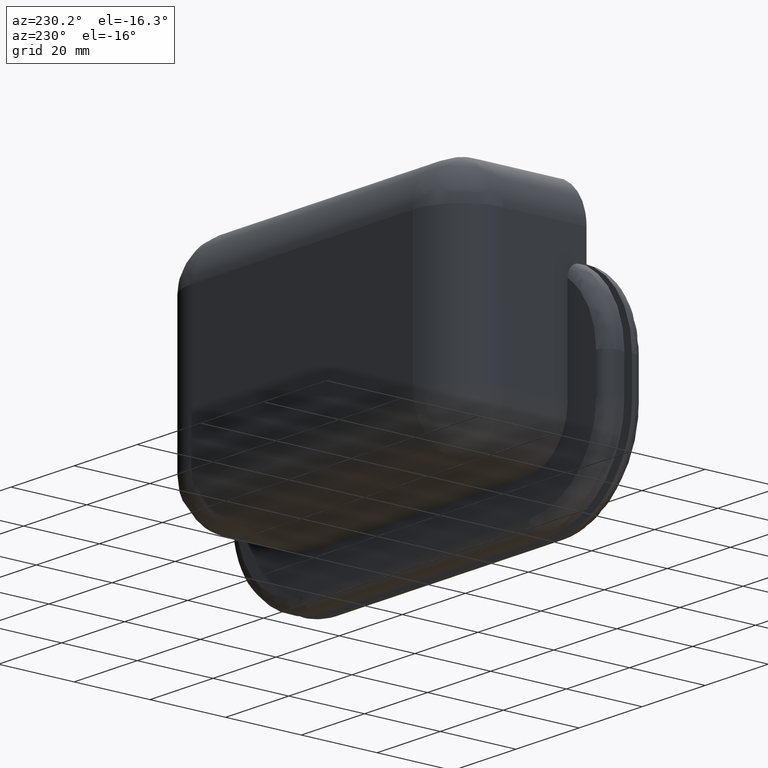
[diagram: clean part render]
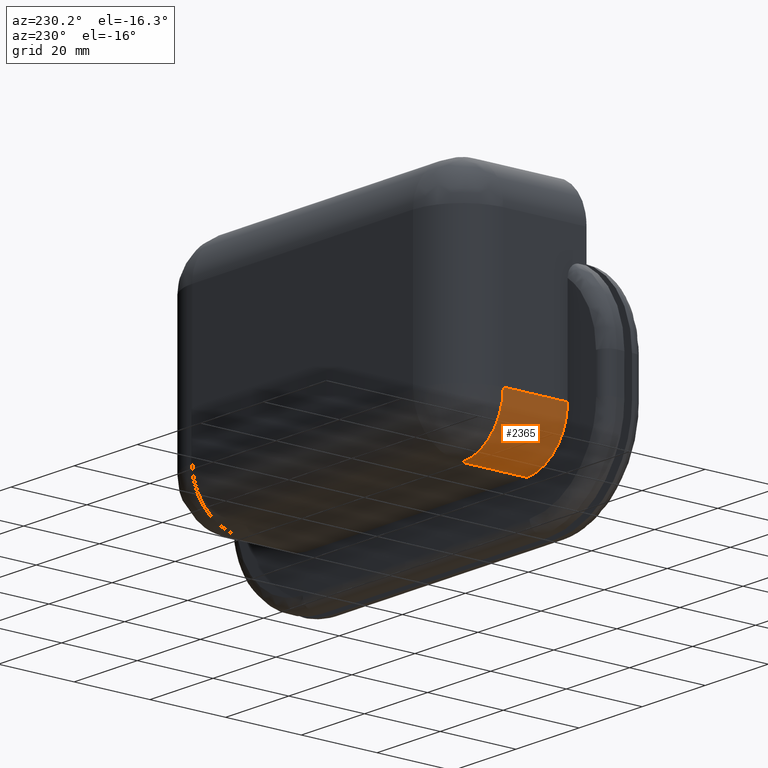
[diagram: same view with one face highlighted and labeled with its STEP entity id]
A machine part, auxiliary view. The second image highlights one B-rep face of the part: STEP entity #2365.
In plain terms, the highlighted face is a freeform B-spline surface patch.
Its self-contained STEP definition (entity closure, byte-faithful):
#2047=CARTESIAN_POINT('',(-48.0,30.0,-3.999999999999910));
#2048=VERTEX_POINT('',#2047);
#2156=CARTESIAN_POINT('',(-35.0,30.0,-17.0));
#2157=VERTEX_POINT('',#2156);
#2171=CARTESIAN_POINT('',(-35.0,30.0,-16.999999999999911));
#2172=CARTESIAN_POINT('',(-48.0,29.999999999999993,-16.999999999999904));
#2173=CARTESIAN_POINT('',(-48.0,30.0,-3.999999999999910));
#2181=(BOUNDED_CURVE()B_SPLINE_CURVE(2,(#2171,#2172,#2173),.UNSPECIFIED.,.F.,.U.)CURVE()GEOMETRIC_REPRESENTATION_ITEM()QUASI_UNIFORM_CURVE()RATIONAL_B_SPLINE_CURVE((1.0,0.707106781186547,1.0))REPRESENTATION_ITEM(''));
#2182=EDGE_CURVE('',#2157,#2048,#2181,.T.);
#2321=CARTESIAN_POINT('',(-47.995545224682239,12.574999999999999,-3.659699671997545));
#2322=CARTESIAN_POINT('',(-47.995545224682239,30.435625000000009,-3.659699671997542));
#2323=CARTESIAN_POINT('',(-48.360472648443114,12.574999999999998,-17.595715740657464));
#2324=CARTESIAN_POINT('',(-48.360472648443107,30.435625000000012,-17.595715740657464));
#2325=CARTESIAN_POINT('',(-34.432947964250651,12.574999999999999,-16.987626880564068));
#2326=CARTESIAN_POINT('',(-34.432947964250637,30.435625000000009,-16.987626880564051));
#2334=(BOUNDED_SURFACE()B_SPLINE_SURFACE(1,2,((#2321,#2323,#2325),(#2322,#2324,#2326)),.UNSPECIFIED.,.F.,.F.,.U.)B_SPLINE_SURFACE_WITH_KNOTS((2,2),(3,3),(0.0,17.860625000000010),(0.0,22.610243497968561),.UNSPECIFIED.)GEOMETRIC_REPRESENTATION_ITEM()RATIONAL_B_SPLINE_SURFACE(((1.0,0.681998360062498,1.0),(1.0,0.681998360062498,1.0)))REPRESENTATION_ITEM('')SURFACE());
#2335=CARTESIAN_POINT('',(-48.0,13.0,-3.999999999999915));
#2336=VERTEX_POINT('',#2335);
#2337=CARTESIAN_POINT('',(-35.0,13.0,-17.0));
#2338=VERTEX_POINT('',#2337);
#2339=CARTESIAN_POINT('',(-48.0,13.0,-3.999999999999915));
#2340=CARTESIAN_POINT('',(-48.0,13.0,-16.999999999999922));
#2341=CARTESIAN_POINT('',(-35.0,13.0,-16.999999999999918));
#2349=(BOUNDED_CURVE()B_SPLINE_CURVE(2,(#2339,#2340,#2341),.UNSPECIFIED.,.F.,.U.)CURVE()GEOMETRIC_REPRESENTATION_ITEM()QUASI_UNIFORM_CURVE()RATIONAL_B_SPLINE_CURVE((1.0,0.707106781186547,1.0))REPRESENTATION_ITEM(''));
#2350=EDGE_CURVE('',#2336,#2338,#2349,.T.);
#2351=ORIENTED_EDGE('',*,*,#2350,.F.);
#2352=CARTESIAN_POINT('',(-48.0,30.0,-3.999999999999910));
#2353=CARTESIAN_POINT('',(-48.0,13.0,-3.999999999999915));
#2354=QUASI_UNIFORM_CURVE('',1,(#2352,#2353),.UNSPECIFIED.,.F.,.U.);
#2355=EDGE_CURVE('',#2048,#2336,#2354,.T.);
#2356=ORIENTED_EDGE('',*,*,#2355,.F.);
#2357=ORIENTED_EDGE('',*,*,#2182,.F.);
#2358=CARTESIAN_POINT('',(-35.0,13.0,-17.0));
#2359=CARTESIAN_POINT('',(-35.0,30.0,-17.0));
#2360=QUASI_UNIFORM_CURVE('',1,(#2358,#2359),.UNSPECIFIED.,.F.,.U.);
#2361=EDGE_CURVE('',#2338,#2157,#2360,.T.);
#2362=ORIENTED_EDGE('',*,*,#2361,.F.);
#2363=EDGE_LOOP('',(#2351,#2356,#2357,#2362));
#2364=FACE_OUTER_BOUND('',#2363,.T.);
#2365=ADVANCED_FACE('',(#2364),#2334,.T.);